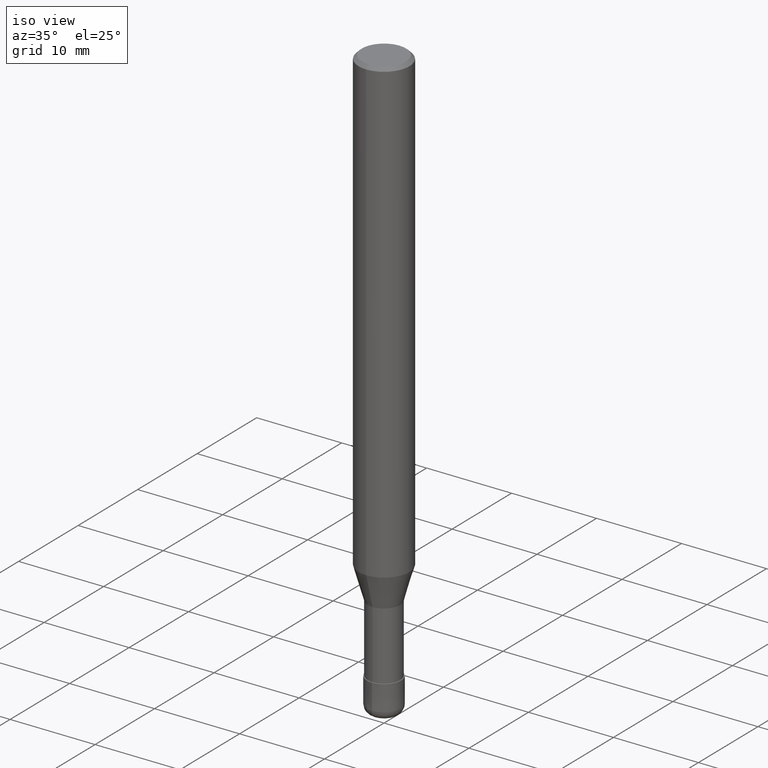
[diagram: clean part render]
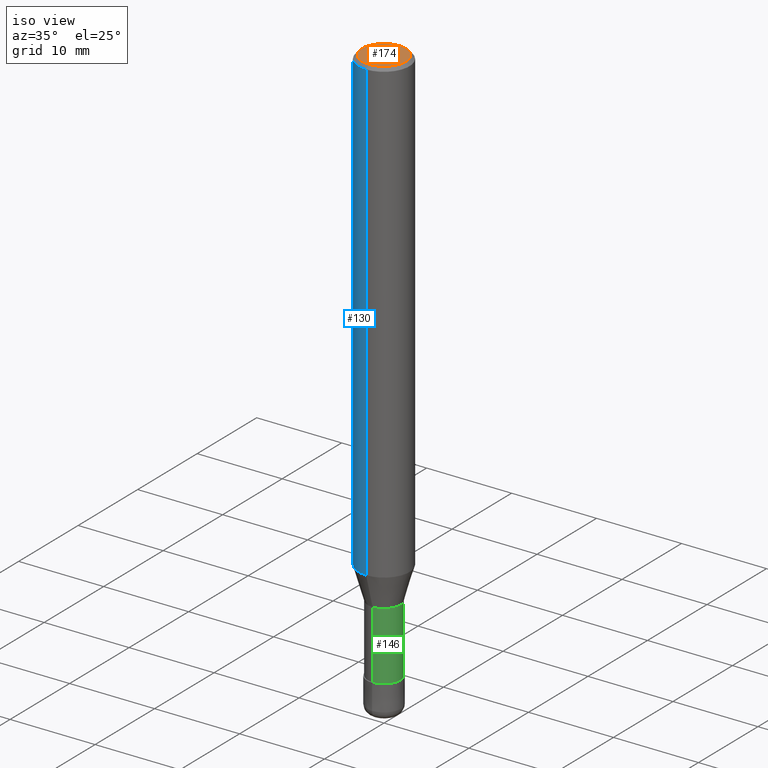
[diagram: same view with three faces highlighted in distinct colors, each labeled with its STEP entity id]
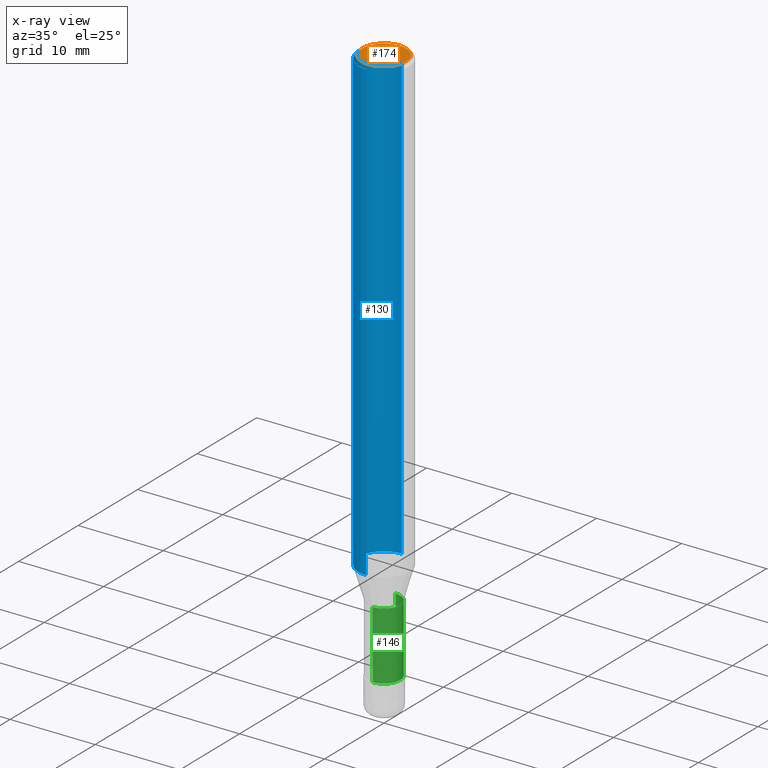
[diagram: x-ray of the same camera — body ghosted, the three highlighted faces saturated]
A machine part, iso view with three faces highlighted in distinct colors.
The next image is the same camera in x-ray (body ghosted, the three faces saturated) — at least one of them is partly hidden behind the body in this view.
Their STEP definitions:

[orange] entity #174 — the highlighted planar face has unit normal (-0, 0, 1).
#128=EDGE_CURVE('',#168,#134,#285,.T.);
#134=VERTEX_POINT('',#292);
#162=EDGE_CURVE('',#134,#168,#322,.T.);
#168=VERTEX_POINT('',#329);
#174=ADVANCED_FACE('',(#335),#336,.T.);
#285=CIRCLE('',#458,2.6);
#292=CARTESIAN_POINT('',(0.0,2.6,0.0));
#322=CIRCLE('',#505,2.6);
#329=CARTESIAN_POINT('',(3.18397651993818E-016,-2.6,0.0));
#335=FACE_OUTER_BOUND('',#522,.T.);
#336=PLANE('',#523);
#458=AXIS2_PLACEMENT_3D('',#656,#657,#658);
#505=AXIS2_PLACEMENT_3D('',#694,#695,#696);
#522=EDGE_LOOP('',(#708,#709));
#523=AXIS2_PLACEMENT_3D('',#710,#711,#712);
#656=CARTESIAN_POINT('',(0.0,0.0,0.0));
#657=DIRECTION('',(0.0,0.0,-1.0));
#658=DIRECTION('',(0.0,1.0,0.0));
#694=CARTESIAN_POINT('',(0.0,0.0,0.0));
#695=DIRECTION('',(0.0,0.0,-1.0));
#696=DIRECTION('',(0.0,1.0,0.0));
#708=ORIENTED_EDGE('',*,*,#162,.F.);
#709=ORIENTED_EDGE('',*,*,#128,.F.);
#710=CARTESIAN_POINT('',(0.0,1.3,0.0));
#711=DIRECTION('',(-0.0,0.0,1.0));
#712=DIRECTION('',(0.0,-1.0,0.0));

[blue] entity #130 — the highlighted cylindrical surface (edge-blend (fillet) strip) has radius 3 mm, axis along (-0, -0, 1).
#102=EDGE_CURVE('',#140,#152,#255,.T.);
#130=ADVANCED_FACE('',(#287),#288,.T.);
#140=VERTEX_POINT('',#299);
#152=VERTEX_POINT('',#312);
#172=VERTEX_POINT('',#333);
#190=EDGE_CURVE('',#230,#172,#355,.T.);
#228=EDGE_CURVE('',#140,#172,#399,.T.);
#230=VERTEX_POINT('',#401);
#232=EDGE_CURVE('',#152,#230,#403,.T.);
#255=LINE('',#420,#421);
#287=FACE_OUTER_BOUND('',#460,.T.);
#288=CYLINDRICAL_SURFACE('',#461,3.0);
#299=CARTESIAN_POINT('',(3.67381906146713E-016,-3.0,-54.199));
#312=CARTESIAN_POINT('',(3.67381906146713E-016,-3.0,-0.399999999999999));
#333=CARTESIAN_POINT('',(0.0,3.0,-54.199));
#355=LINE('',#544,#545);
#399=CIRCLE('',#599,3.0);
#401=CARTESIAN_POINT('',(0.0,3.0,-0.399999999999999));
#403=CIRCLE('',#604,3.0);
#420=CARTESIAN_POINT('',(3.67381906146713E-016,-3.0,-27.2995));
#421=VECTOR('',#609,1.0);
#460=EDGE_LOOP('',(#660,#661,#662,#663));
#461=AXIS2_PLACEMENT_3D('',#664,#665,#666);
#544=CARTESIAN_POINT('',(-3.67381906146713E-016,3.0,-27.2995));
#545=VECTOR('',#738,1.0);
#599=AXIS2_PLACEMENT_3D('',#800,#801,#802);
#604=AXIS2_PLACEMENT_3D('',#803,#804,#805);
#609=DIRECTION('',(-0.0,-0.0,1.0));
#660=ORIENTED_EDGE('',*,*,#190,.T.);
#661=ORIENTED_EDGE('',*,*,#228,.F.);
#662=ORIENTED_EDGE('',*,*,#102,.T.);
#663=ORIENTED_EDGE('',*,*,#232,.T.);
#664=CARTESIAN_POINT('',(0.0,0.0,-27.2995));
#665=DIRECTION('',(-0.0,-0.0,1.0));
#666=DIRECTION('',(0.0,1.0,0.0));
#738=DIRECTION('',(0.0,0.0,-1.0));
#800=CARTESIAN_POINT('',(0.0,0.0,-54.199));
#801=DIRECTION('',(0.0,0.0,-1.0));
#802=DIRECTION('',(0.0,1.0,0.0));
#803=CARTESIAN_POINT('',(0.0,0.0,-0.399999999999999));
#804=DIRECTION('',(0.0,0.0,-1.0));
#805=DIRECTION('',(0.0,1.0,0.0));

[green] entity #146 — the highlighted cylindrical surface (edge-blend (fillet) strip) has radius 1.91 mm, axis along (-0, -0, 1).
#118=EDGE_CURVE('',#158,#182,#274,.T.);
#126=VERTEX_POINT('',#283);
#132=EDGE_CURVE('',#126,#182,#290,.T.);
#136=EDGE_CURVE('',#158,#212,#294,.T.);
#146=ADVANCED_FACE('',(#305),#306,.T.);
#148=EDGE_CURVE('',#212,#126,#308,.T.);
#158=VERTEX_POINT('',#318);
#182=VERTEX_POINT('',#346);
#212=VERTEX_POINT('',#380);
#274=CIRCLE('',#444,1.90995);
#283=CARTESIAN_POINT('',(2.33893690548305E-016,-1.90995,-66.0));
#290=LINE('',#464,#465);
#294=LINE('',#470,#471);
#305=FACE_OUTER_BOUND('',#482,.T.);
#306=CYLINDRICAL_SURFACE('',#483,1.90995);
#308=CIRCLE('',#486,1.90995);
#318=CARTESIAN_POINT('',(0.0,1.90995,-58.0));
#346=CARTESIAN_POINT('',(2.33893690548305E-016,-1.90995,-58.0));
#380=CARTESIAN_POINT('',(0.0,1.90995,-66.0));
#444=AXIS2_PLACEMENT_3D('',#641,#642,#643);
#464=CARTESIAN_POINT('',(2.33893690548305E-016,-1.90995,-62.0));
#465=VECTOR('',#667,1.0);
#470=CARTESIAN_POINT('',(-2.33893690548305E-016,1.90995,-62.0));
#471=VECTOR('',#668,1.0);
#482=EDGE_LOOP('',(#678,#679,#680,#681));
#483=AXIS2_PLACEMENT_3D('',#682,#683,#684);
#486=AXIS2_PLACEMENT_3D('',#685,#686,#687);
#641=CARTESIAN_POINT('',(0.0,0.0,-58.0));
#642=DIRECTION('',(0.0,0.0,-1.0));
#643=DIRECTION('',(0.0,1.0,0.0));
#667=DIRECTION('',(-0.0,-0.0,1.0));
#668=DIRECTION('',(0.0,0.0,-1.0));
#678=ORIENTED_EDGE('',*,*,#136,.F.);
#679=ORIENTED_EDGE('',*,*,#118,.T.);
#680=ORIENTED_EDGE('',*,*,#132,.F.);
#681=ORIENTED_EDGE('',*,*,#148,.F.);
#682=CARTESIAN_POINT('',(0.0,0.0,-62.0));
#683=DIRECTION('',(-0.0,-0.0,1.0));
#684=DIRECTION('',(0.0,1.0,0.0));
#685=CARTESIAN_POINT('',(0.0,0.0,-66.0));
#686=DIRECTION('',(0.0,0.0,-1.0));
#687=DIRECTION('',(0.0,1.0,0.0));